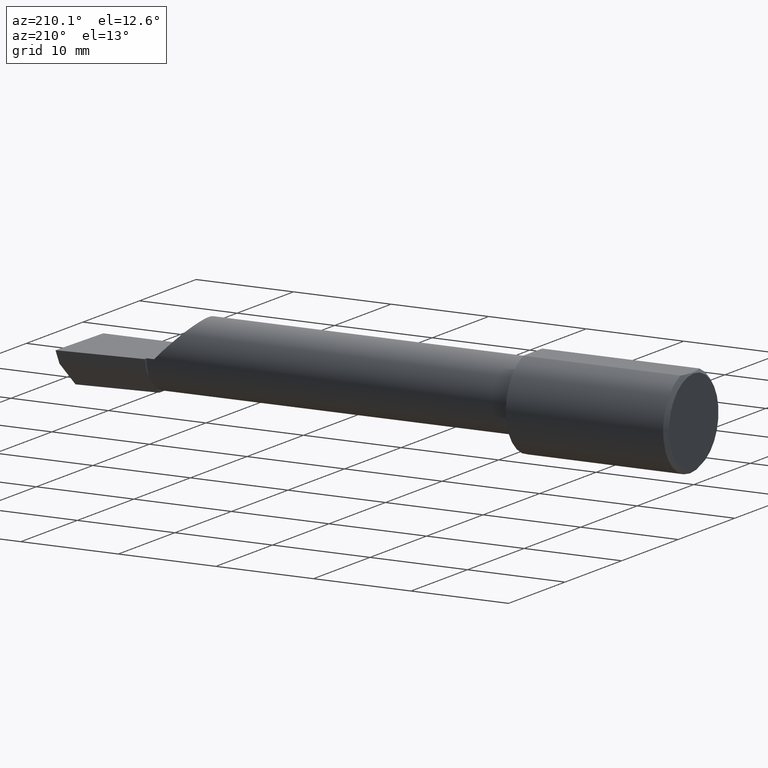
[diagram: clean part render]
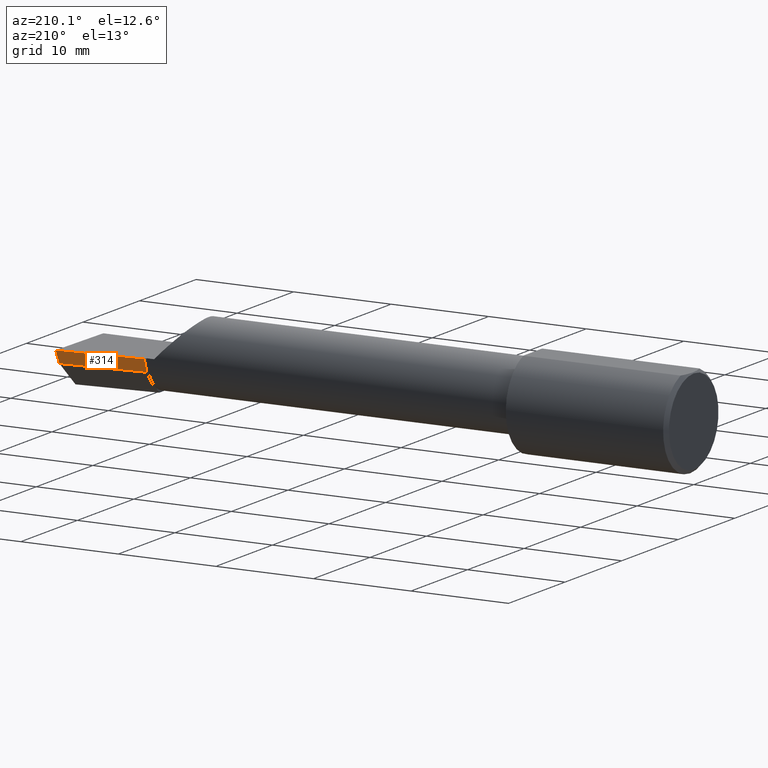
[diagram: same view with one face highlighted and labeled with its STEP entity id]
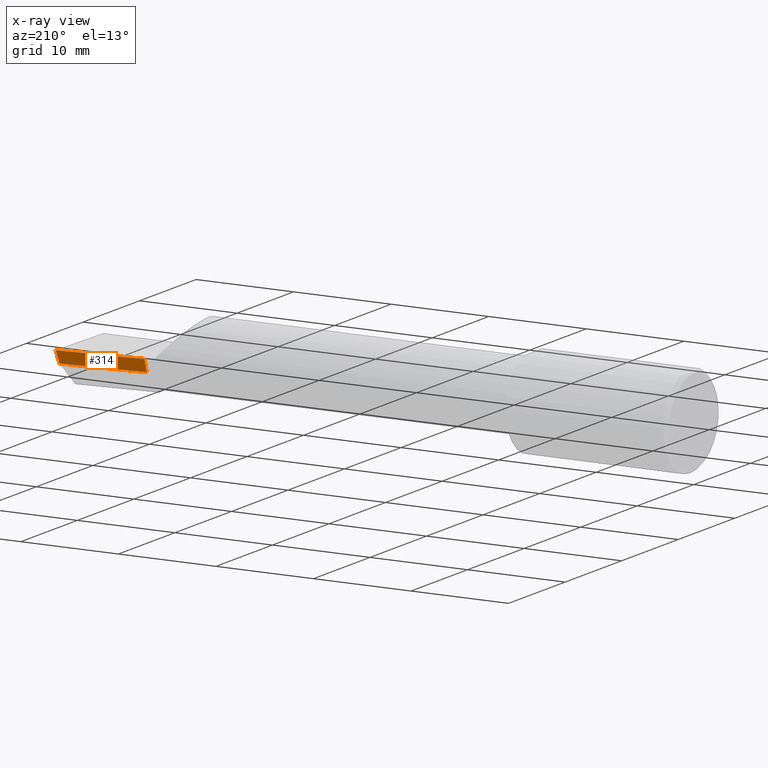
[diagram: x-ray of the same camera — body ghosted, the highlighted face saturated]
A machine part, auxiliary view. The second image highlights one B-rep face of the part: STEP entity #314.
The next image is the same camera in x-ray: the body ghosted, the highlighted face saturated — about 0% of this face is hidden behind the body in this view.
In plain terms, the highlighted planar face has unit normal (-0.0917, 0.9519, -0.2924).
Its self-contained STEP definition (entity closure, byte-faithful):
#12 = CARTESIAN_POINT ( 'NONE',  ( 2.511419111345317923, 0.1163922996227946260, -0.04999999999999999584 ) ) ;
#19 = DIRECTION ( 'NONE',  ( 0.000000000000000000, 0.2936076258024060692, 0.9559260233253795702 ) ) ;
#21 = VECTOR ( 'NONE', #149, 39.37007874015748143 ) ;
#22 = CARTESIAN_POINT ( 'NONE',  ( 2.160000000000000142, 0.09456875743780475407, -0.01088401009027229610 ) ) ;
#42 = AXIS2_PLACEMENT_3D ( 'NONE', #117, #471, #19 ) ;
#60 = VECTOR ( 'NONE', #200, 39.37007874015748854 ) ;
#71 = EDGE_CURVE ( 'NONE', #317, #304, #491, .T. ) ;
#78 = EDGE_LOOP ( 'NONE', ( #420, #85, #458, #503 ) ) ;
#80 = FACE_OUTER_BOUND ( 'NONE', #78, .T. ) ;
#84 = VECTOR ( 'NONE', #553, 39.37007874015748854 ) ;
#85 = ORIENTED_EDGE ( 'NONE', *, *, #497, .T. ) ;
#113 = CARTESIAN_POINT ( 'NONE',  ( 0.5470260790800316464, -0.05740000000000000657, 2.701812985571356346E-16 ) ) ;
#117 = CARTESIAN_POINT ( 'NONE',  ( 2.509953961983671711, 0.1316084575252021438, -6.829619984160658046E-17 ) ) ;
#124 = PLANE ( 'NONE',  #42 ) ;
#149 = DIRECTION ( 'NONE',  ( 0.9953961983671787417, 0.09584575252022459191, -1.028972571603813720E-16 ) ) ;
#200 = DIRECTION ( 'NONE',  ( -0.9953961983671800740, -0.09584575252021031166, 0.000000000000000000 ) ) ;
#215 = CARTESIAN_POINT ( 'NONE',  ( 2.160000000000000142, 0.09791172361284175563, 3.308097179827818849E-16 ) ) ;
#260 = LINE ( 'NONE', #22, #392 ) ;
#272 = CARTESIAN_POINT ( 'NONE',  ( 2.499999999999979128, 0.1306500000000238859, 8.403660643088248419E-14 ) ) ;
#279 = EDGE_CURVE ( 'NONE', #524, #304, #511, .T. ) ;
#304 = VERTEX_POINT ( 'NONE', #272 ) ;
#314 = ADVANCED_FACE ( 'NONE', ( #80 ), #124, .T. ) ;
#317 = VERTEX_POINT ( 'NONE', #215 ) ;
#335 = EDGE_CURVE ( 'NONE', #317, #425, #260, .T. ) ;
#392 = VECTOR ( 'NONE', #413, 39.37007874015748854 ) ;
#413 = DIRECTION ( 'NONE',  ( 2.005228508682076666E-18, -0.2936076258024060692, -0.9559260233253795702 ) ) ;
#420 = ORIENTED_EDGE ( 'NONE', *, *, #279, .F. ) ;
#425 = VERTEX_POINT ( 'NONE', #573 ) ;
#458 = ORIENTED_EDGE ( 'NONE', *, *, #335, .F. ) ;
#471 = DIRECTION ( 'NONE',  ( -0.09165774897393341725, 0.9519021185660614393, -0.2923717047227303856 ) ) ;
#491 = LINE ( 'NONE', #113, #21 ) ;
#493 = CARTESIAN_POINT ( 'NONE',  ( 2.493439983562941720, 0.1146611065212079367, -0.04999999999999999584 ) ) ;
#497 = EDGE_CURVE ( 'NONE', #524, #425, #536, .T. ) ;
#503 = ORIENTED_EDGE ( 'NONE', *, *, #71, .T. ) ;
#504 = CARTESIAN_POINT ( 'NONE',  ( 2.500188977433780213, 0.1311105994646662443, 0.001440373173041237373 ) ) ;
#511 = LINE ( 'NONE', #504, #84 ) ;
#524 = VERTEX_POINT ( 'NONE', #493 ) ;
#536 = LINE ( 'NONE', #12, #60 ) ;
#553 = DIRECTION ( 'NONE',  ( 0.1240019227988279765, 0.3022330132596590668, 0.9451342385281468195 ) ) ;
#573 = CARTESIAN_POINT ( 'NONE',  ( 2.160000000000000142, 0.08255448787293399870, -0.05000000000000000278 ) ) ;